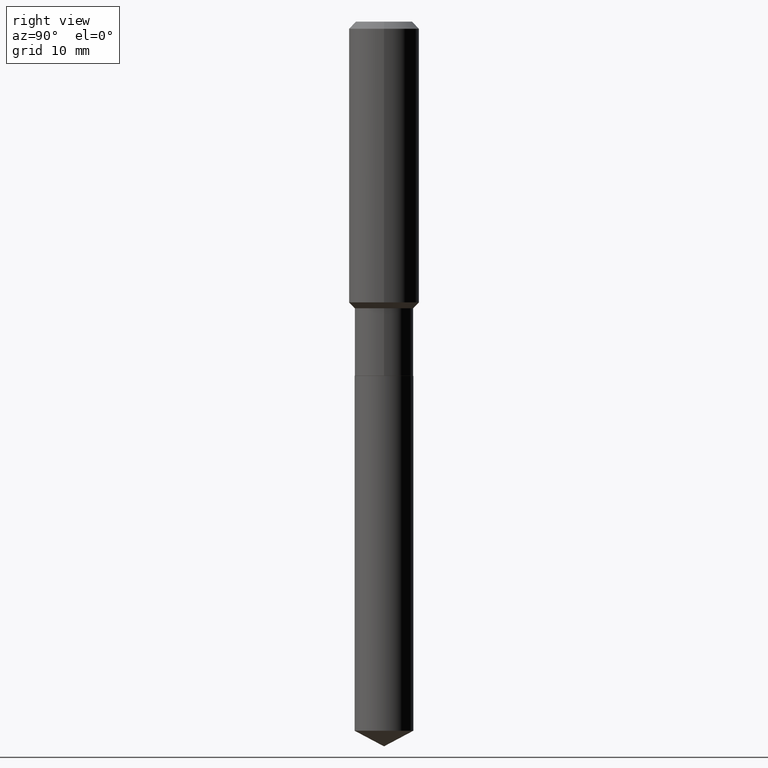
[diagram: clean part render]
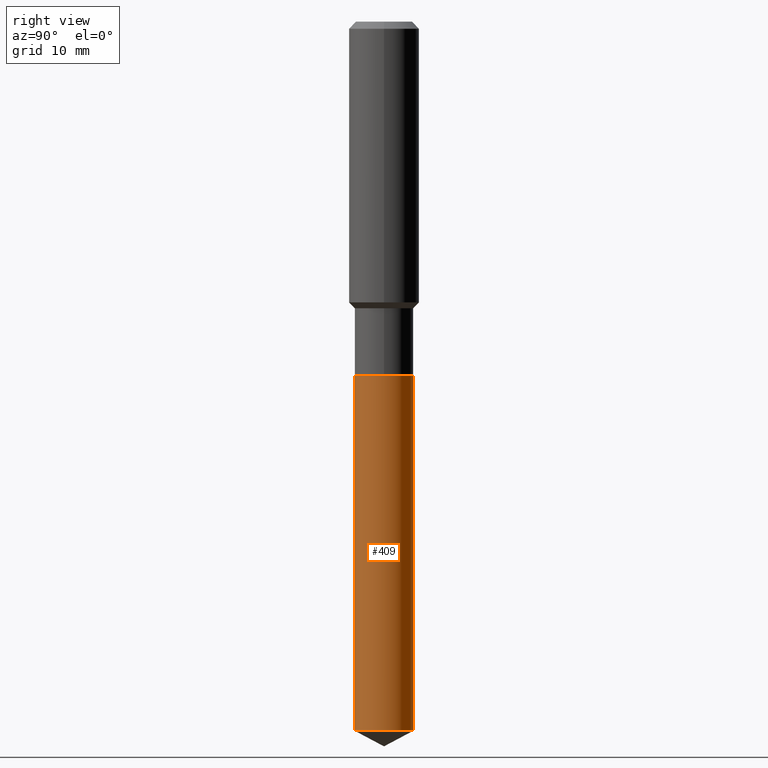
[diagram: same view with one face highlighted and labeled with its STEP entity id]
A machine part, right view. The second image highlights one B-rep face of the part: STEP entity #409.
In plain terms, the highlighted cylindrical surface (edge-blend (fillet) strip) has radius 4.1669 mm, axis along (-0, 0, 1).
Its self-contained STEP definition (entity closure, byte-faithful):
#20 = LINE ( 'NONE', #93, #163 ) ;
#48 = AXIS2_PLACEMENT_3D ( 'NONE', #487, #418, #343 ) ;
#57 = EDGE_CURVE ( 'NONE', #280, #244, #73, .T. ) ;
#58 = VECTOR ( 'NONE', #455, 39.37007874015748143 ) ;
#68 = EDGE_CURVE ( 'NONE', #244, #241, #144, .T. ) ;
#73 = LINE ( 'NONE', #195, #58 ) ;
#83 = CARTESIAN_POINT ( 'NONE',  ( 1.165645358014541000E-15, 0.1640499999999861236, -3.967773067735935744 ) ) ;
#84 = ORIENTED_EDGE ( 'NONE', *, *, #68, .F. ) ;
#93 = CARTESIAN_POINT ( 'NONE',  ( 1.165645358014492485E-15, 0.1640499999999930625, -1.981100000000000305 ) ) ;
#109 = CARTESIAN_POINT ( 'NONE',  ( -1.145555027274334830E-15, -0.1640500000000138514, -3.967773067735934855 ) ) ;
#112 = CYLINDRICAL_SURFACE ( 'NONE', #48, 0.1640500000000000014 ) ;
#116 = AXIS2_PLACEMENT_3D ( 'NONE', #117, #242, #277 ) ;
#117 = CARTESIAN_POINT ( 'NONE',  ( 4.844718251933373369E-29, -6.916973680382155175E-15, -1.981099999999999861 ) ) ;
#126 = DIRECTION ( 'NONE',  ( -6.982962677686265133E-15, -1.000000000000000000, 3.330506545156066257E-15 ) ) ;
#144 = CIRCLE ( 'NONE', #116, 0.1640500000000000014 ) ;
#145 = EDGE_CURVE ( 'NONE', #280, #486, #189, .T. ) ;
#163 = VECTOR ( 'NONE', #249, 39.37007874015748143 ) ;
#168 = EDGE_LOOP ( 'NONE', ( #206, #345, #84, #431 ) ) ;
#175 = CARTESIAN_POINT ( 'NONE',  ( 9.703199675533465225E-29, -1.385321314233753012E-14, -3.967773067735935300 ) ) ;
#189 = CIRCLE ( 'NONE', #212, 0.1640500000000000014 ) ;
#195 = CARTESIAN_POINT ( 'NONE',  ( -1.145555027274383345E-15, -0.1640500000000069125, -1.981099999999999195 ) ) ;
#206 = ORIENTED_EDGE ( 'NONE', *, *, #145, .T. ) ;
#212 = AXIS2_PLACEMENT_3D ( 'NONE', #175, #325, #126 ) ;
#241 = VERTEX_POINT ( 'NONE', #397 ) ;
#242 = DIRECTION ( 'NONE',  ( -2.445536461183793297E-29, 3.491384453034385749E-15, 1.000000000000000000 ) ) ;
#244 = VERTEX_POINT ( 'NONE', #445 ) ;
#249 = DIRECTION ( 'NONE',  ( -2.445536461183793297E-29, 3.491384453034385749E-15, 1.000000000000000000 ) ) ;
#263 = EDGE_CURVE ( 'NONE', #486, #241, #20, .T. ) ;
#277 = DIRECTION ( 'NONE',  ( -6.982962677686265133E-15, -1.000000000000000000, 3.330506545156066257E-15 ) ) ;
#280 = VERTEX_POINT ( 'NONE', #109 ) ;
#325 = DIRECTION ( 'NONE',  ( -2.445536461183793297E-29, 3.491384453034385749E-15, 1.000000000000000000 ) ) ;
#343 = DIRECTION ( 'NONE',  ( -6.982962677686265133E-15, -1.000000000000000000, 3.330506545156066257E-15 ) ) ;
#345 = ORIENTED_EDGE ( 'NONE', *, *, #263, .T. ) ;
#397 = CARTESIAN_POINT ( 'NONE',  ( 1.165645358014541395E-15, 0.1640499999999930625, -1.981100000000000305 ) ) ;
#409 = ADVANCED_FACE ( 'NONE', ( #448 ), #112, .T. ) ;
#418 = DIRECTION ( 'NONE',  ( -2.445536461183793297E-29, 3.491384453034385749E-15, 1.000000000000000000 ) ) ;
#431 = ORIENTED_EDGE ( 'NONE', *, *, #57, .F. ) ;
#445 = CARTESIAN_POINT ( 'NONE',  ( -1.145555027274383345E-15, -0.1640500000000069125, -1.981099999999999195 ) ) ;
#448 = FACE_OUTER_BOUND ( 'NONE', #168, .T. ) ;
#455 = DIRECTION ( 'NONE',  ( -2.445536461183793297E-29, 3.491384453034385749E-15, 1.000000000000000000 ) ) ;
#486 = VERTEX_POINT ( 'NONE', #83 ) ;
#487 = CARTESIAN_POINT ( 'NONE',  ( 4.844718251933373369E-29, -6.916973680382155175E-15, -1.981099999999999861 ) ) ;